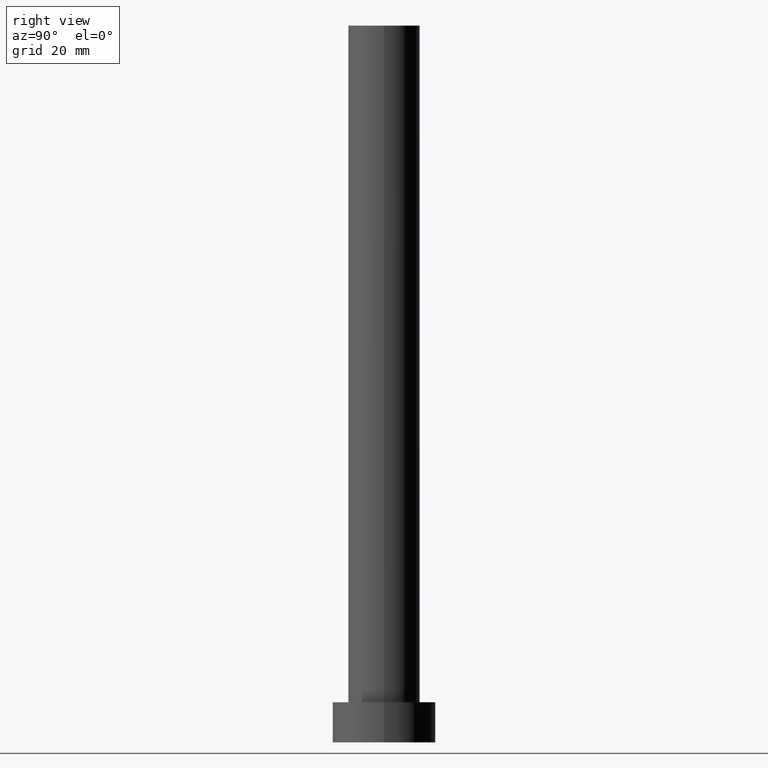
[diagram: clean part render]
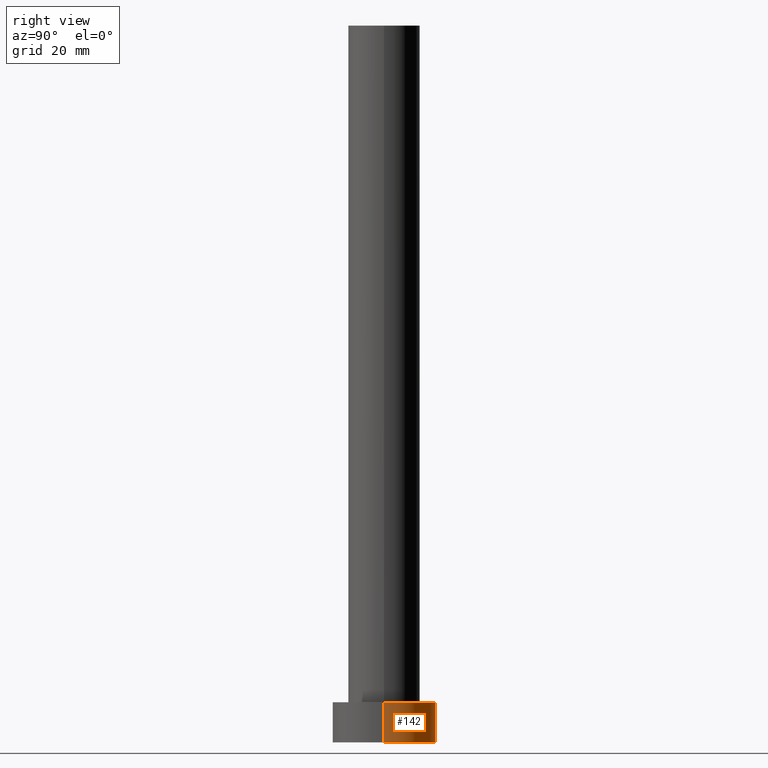
[diagram: same view with one face highlighted and labeled with its STEP entity id]
A machine part, right view. The second image highlights one B-rep face of the part: STEP entity #142.
In plain terms, the highlighted cylindrical surface (partial cylindrical patch) has radius 9 mm, axis along (-0, -0, -1).
Its self-contained STEP definition (entity closure, byte-faithful):
#6 = CARTESIAN_POINT ( 'NONE',  ( -9.000000000000000000, 0.000000000000000000, 7.000000000000000000 ) ) ;
#9 = CIRCLE ( 'NONE', #150, 9.000000000000000000 ) ;
#31 = ORIENTED_EDGE ( 'NONE', *, *, #208, .T. ) ;
#33 = ORIENTED_EDGE ( 'NONE', *, *, #90, .F. ) ;
#44 = DIRECTION ( 'NONE',  ( -0.000000000000000000, -0.000000000000000000, -1.000000000000000000 ) ) ;
#47 = AXIS2_PLACEMENT_3D ( 'NONE', #226, #165, #181 ) ;
#48 = VERTEX_POINT ( 'NONE', #178 ) ;
#55 = DIRECTION ( 'NONE',  ( 1.000000000000000000, 0.000000000000000000, 0.000000000000000000 ) ) ;
#75 = DIRECTION ( 'NONE',  ( 0.000000000000000000, 0.000000000000000000, 1.000000000000000000 ) ) ;
#79 = DIRECTION ( 'NONE',  ( 1.000000000000000000, 0.000000000000000000, 0.000000000000000000 ) ) ;
#80 = AXIS2_PLACEMENT_3D ( 'NONE', #203, #146, #79 ) ;
#83 = EDGE_LOOP ( 'NONE', ( #33, #31, #198, #130 ) ) ;
#90 = EDGE_CURVE ( 'NONE', #48, #172, #9, .T. ) ;
#99 = CARTESIAN_POINT ( 'NONE',  ( 0.000000000000000000, 0.000000000000000000, 7.000000000000000000 ) ) ;
#104 = CARTESIAN_POINT ( 'NONE',  ( -9.000000000000000000, 0.000000000000000000, 0.000000000000000000 ) ) ;
#108 = VECTOR ( 'NONE', #44, 1000.000000000000000 ) ;
#110 = VERTEX_POINT ( 'NONE', #156 ) ;
#129 = CIRCLE ( 'NONE', #80, 9.000000000000000000 ) ;
#130 = ORIENTED_EDGE ( 'NONE', *, *, #251, .F. ) ;
#140 = LINE ( 'NONE', #184, #108 ) ;
#142 = ADVANCED_FACE ( 'NONE', ( #253 ), #234, .T. ) ;
#146 = DIRECTION ( 'NONE',  ( 0.000000000000000000, 0.000000000000000000, 1.000000000000000000 ) ) ;
#148 = EDGE_CURVE ( 'NONE', #110, #216, #129, .T. ) ;
#150 = AXIS2_PLACEMENT_3D ( 'NONE', #99, #75, #55 ) ;
#156 = CARTESIAN_POINT ( 'NONE',  ( 9.000000000000000000, 1.102182119232617714E-15, 0.000000000000000000 ) ) ;
#162 = CARTESIAN_POINT ( 'NONE',  ( -9.000000000000000000, 0.000000000000000000, 7.000000000000000000 ) ) ;
#165 = DIRECTION ( 'NONE',  ( -0.000000000000000000, -0.000000000000000000, -1.000000000000000000 ) ) ;
#166 = DIRECTION ( 'NONE',  ( -0.000000000000000000, -0.000000000000000000, -1.000000000000000000 ) ) ;
#170 = VECTOR ( 'NONE', #166, 1000.000000000000000 ) ;
#172 = VERTEX_POINT ( 'NONE', #162 ) ;
#178 = CARTESIAN_POINT ( 'NONE',  ( 9.000000000000000000, 1.102182119232617714E-15, 7.000000000000000000 ) ) ;
#181 = DIRECTION ( 'NONE',  ( -1.000000000000000000, 0.000000000000000000, 0.000000000000000000 ) ) ;
#184 = CARTESIAN_POINT ( 'NONE',  ( 9.000000000000000000, 1.102182119232617714E-15, 7.000000000000000000 ) ) ;
#198 = ORIENTED_EDGE ( 'NONE', *, *, #148, .T. ) ;
#203 = CARTESIAN_POINT ( 'NONE',  ( 0.000000000000000000, 0.000000000000000000, 0.000000000000000000 ) ) ;
#208 = EDGE_CURVE ( 'NONE', #48, #110, #140, .T. ) ;
#216 = VERTEX_POINT ( 'NONE', #104 ) ;
#226 = CARTESIAN_POINT ( 'NONE',  ( 0.000000000000000000, 0.000000000000000000, 7.000000000000000000 ) ) ;
#234 = CYLINDRICAL_SURFACE ( 'NONE', #47, 9.000000000000000000 ) ;
#241 = LINE ( 'NONE', #6, #170 ) ;
#251 = EDGE_CURVE ( 'NONE', #172, #216, #241, .T. ) ;
#253 = FACE_OUTER_BOUND ( 'NONE', #83, .T. ) ;